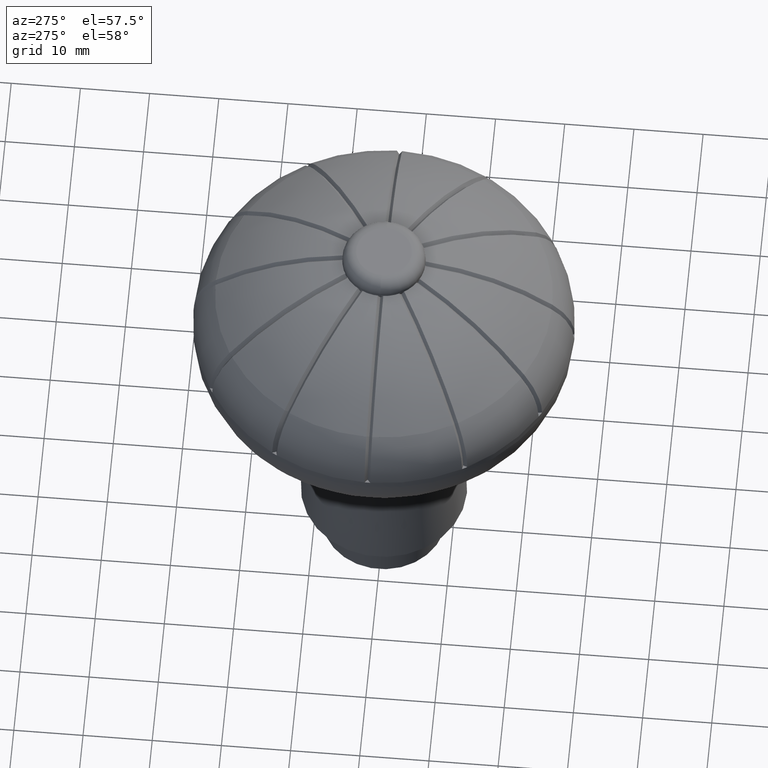
[diagram: clean part render]
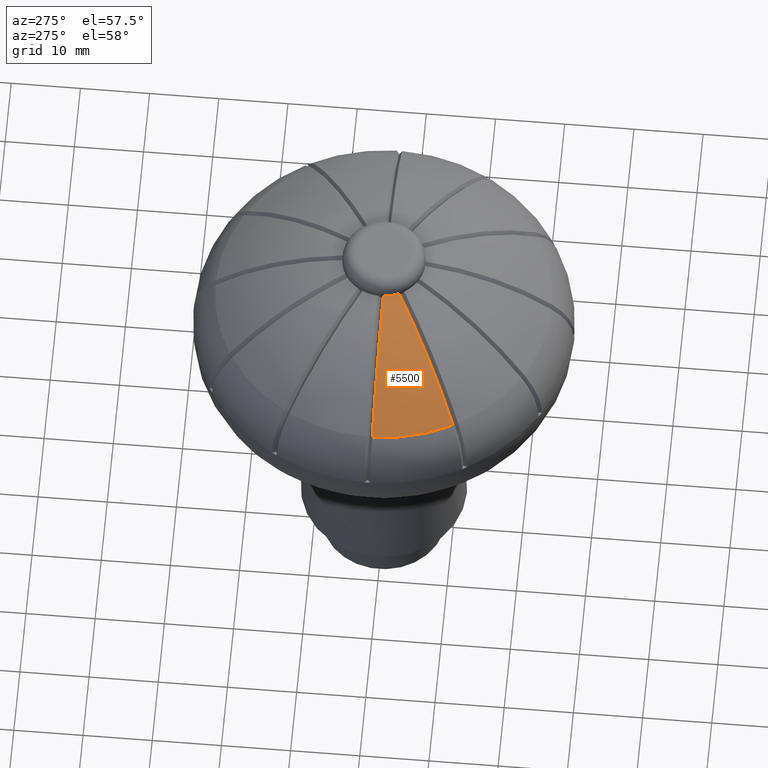
[diagram: same view with one face highlighted and labeled with its STEP entity id]
A machine part, auxiliary view. The second image highlights one B-rep face of the part: STEP entity #5500.
In plain terms, the highlighted spherical surface has radius 35.5865 mm.
Its self-contained STEP definition (entity closure, byte-faithful):
#63 = CARTESIAN_POINT ( 'NONE',  ( -6.000000000000000900, -2.070016043012650600E-014, 33.49054408064368700 ) ) ;
#115 = DIRECTION ( 'NONE',  ( -0.0000000000000000000, -0.0000000000000000000, 1.000000000000000000 ) ) ;
#139 = ORIENTED_EDGE ( 'NONE', *, *, #9724, .T. ) ;
#637 = DIRECTION ( 'NONE',  ( 0.8660254037844361500, 0.5000000000000040000, -1.779374095482563600E-015 ) ) ;
#676 = VERTEX_POINT ( 'NONE', #7785 ) ;
#1483 = EDGE_CURVE ( 'NONE', #676, #8594, #7192, .T. ) ;
#1553 = CARTESIAN_POINT ( 'NONE',  ( -21.28430102148690400, -11.80641545260538900, 24.37475587949485200 ) ) ;
#1760 = AXIS2_PLACEMENT_3D ( 'NONE', #13090, #4374, #3348 ) ;
#2020 = ORIENTED_EDGE ( 'NONE', *, *, #5542, .F. ) ;
#2077 = CARTESIAN_POINT ( 'NONE',  ( -24.33595311270542500, -0.4174948011542390900, 24.37475587949486000 ) ) ;
#2491 = AXIS2_PLACEMENT_3D ( 'NONE', #6703, #115, #7786 ) ;
#2499 = CARTESIAN_POINT ( 'NONE',  ( -5.196152422706620500, -3.000000000000025300, 33.49054408075738800 ) ) ;
#2853 = AXIS2_PLACEMENT_3D ( 'NONE', #12240, #5713, #13322 ) ;
#3348 = DIRECTION ( 'NONE',  ( 0.0000000000000000000, 1.000000000000000000, 2.437331011910131300E-016 ) ) ;
#3435 = DIRECTION ( 'NONE',  ( 3.491481338843133400E-015, -1.000000000000000000, -2.423510738497011100E-016 ) ) ;
#3506 = EDGE_CURVE ( 'NONE', #5519, #676, #6478, .T. ) ;
#3681 = EDGE_CURVE ( 'NONE', #6212, #13764, #11261, .T. ) ;
#3887 = DIRECTION ( 'NONE',  ( 0.8536274075953875800, 0.4928420135628446300, 0.1686030802485503900 ) ) ;
#4374 = DIRECTION ( 'NONE',  ( -1.000000000000000000, 0.0000000000000000000, 0.0000000000000000000 ) ) ;
#4614 = EDGE_CURVE ( 'NONE', #13764, #7921, #5291, .T. ) ;
#4692 = AXIS2_PLACEMENT_3D ( 'NONE', #9971, #3435, #11073 ) ;
#5291 = CIRCLE ( 'NONE', #11095, 35.58653846153846000 ) ;
#5500 = ADVANCED_FACE ( 'NONE', ( #8846 ), #6311, .T. ) ;
#5519 = VERTEX_POINT ( 'NONE', #63 ) ;
#5542 = EDGE_CURVE ( 'NONE', #5519, #7921, #8496, .T. ) ;
#5603 = CARTESIAN_POINT ( 'NONE',  ( -5.404542223305261600, -2.638232435808796100, 33.48813007069023900 ) ) ;
#5713 = DIRECTION ( 'NONE',  ( 0.9856840271256814800, 3.400636249152461900E-015, 0.1686030802485504500 ) ) ;
#6212 = VERTEX_POINT ( 'NONE', #1553 ) ;
#6224 = ORIENTED_EDGE ( 'NONE', *, *, #3506, .T. ) ;
#6311 = SPHERICAL_SURFACE ( 'NONE', #1760, 35.58653846153846700 ) ;
#6474 = DIRECTION ( 'NONE',  ( -0.0000000000000000000, -2.423510738497009600E-016, 1.000000000000000000 ) ) ;
#6478 = CIRCLE ( 'NONE', #2853, 35.58653846153847400 ) ;
#6703 = CARTESIAN_POINT ( 'NONE',  ( 0.0000000000000000000, 0.0000000000000000000, 33.49054408069388700 ) ) ;
#7192 = CIRCLE ( 'NONE', #4692, 35.58408939070334000 ) ;
#7221 = DIRECTION ( 'NONE',  ( -0.5000000000000041100, 0.8660254037844363800, 2.098821865882791600E-016 ) ) ;
#7785 = CARTESIAN_POINT ( 'NONE',  ( -5.999587079112380600, -0.4174948011541751400, 33.48813007069023900 ) ) ;
#7786 = DIRECTION ( 'NONE',  ( -1.000000000000000000, 0.0000000000000000000, 0.0000000000000000000 ) ) ;
#7921 = VERTEX_POINT ( 'NONE', #2499 ) ;
#8372 = AXIS2_PLACEMENT_3D ( 'NONE', #12994, #6474, #14091 ) ;
#8496 = CIRCLE ( 'NONE', #2491, 6.000000000000000900 ) ;
#8594 = VERTEX_POINT ( 'NONE', #2077 ) ;
#8846 = FACE_OUTER_BOUND ( 'NONE', #12570, .T. ) ;
#8915 = ORIENTED_EDGE ( 'NONE', *, *, #4614, .T. ) ;
#9724 = EDGE_CURVE ( 'NONE', #8594, #6212, #11749, .T. ) ;
#9971 = CARTESIAN_POINT ( 'NONE',  ( 1.457675307293722600E-015, -0.4174948011541493900, -1.586538461538465700 ) ) ;
#10421 = CARTESIAN_POINT ( 'NONE',  ( -2.961615007385882200E-014, -2.127173291833599000E-014, -1.586538461538471400 ) ) ;
#10801 = ORIENTED_EDGE ( 'NONE', *, *, #3681, .T. ) ;
#10896 = AXIS2_PLACEMENT_3D ( 'NONE', #13760, #7221, #637 ) ;
#11073 = DIRECTION ( 'NONE',  ( -1.000000000000000000, -3.491716975039415100E-015, 8.896870477412819900E-016 ) ) ;
#11095 = AXIS2_PLACEMENT_3D ( 'NONE', #10421, #3887, #11540 ) ;
#11261 = CIRCLE ( 'NONE', #10896, 35.58408939070334800 ) ;
#11531 = ORIENTED_EDGE ( 'NONE', *, *, #1483, .T. ) ;
#11540 = DIRECTION ( 'NONE',  ( -0.5000000000000040000, 0.8660254037844362700, 0.0000000000000000000 ) ) ;
#11749 = CIRCLE ( 'NONE', #8372, 24.33953400977076200 ) ;
#12240 = CARTESIAN_POINT ( 'NONE',  ( -3.248789521325530200E-014, -4.172840700833173600E-015, -1.586538461538471200 ) ) ;
#12570 = EDGE_LOOP ( 'NONE', ( #139, #10801, #8915, #2020, #6224, #11531 ) ) ;
#12994 = CARTESIAN_POINT ( 'NONE',  ( 0.0000000000000000000, -1.046458826291065200E-014, 24.37475587949486000 ) ) ;
#13090 = CARTESIAN_POINT ( 'NONE',  ( 0.0000000000000000000, -4.172840700833061600E-015, -1.586538461538465700 ) ) ;
#13322 = DIRECTION ( 'NONE',  ( 0.1686030802485504200, 0.0000000000000000000, -0.9856840271256812600 ) ) ;
#13760 = CARTESIAN_POINT ( 'NONE',  ( -0.2087474005770776400, 0.3615611037474231200, -1.586538461538465700 ) ) ;
#13764 = VERTEX_POINT ( 'NONE', #5603 ) ;
#14091 = DIRECTION ( 'NONE',  ( -8.881784197001252300E-016, 1.000000000000000000, 2.850873768216641700E-016 ) ) ;